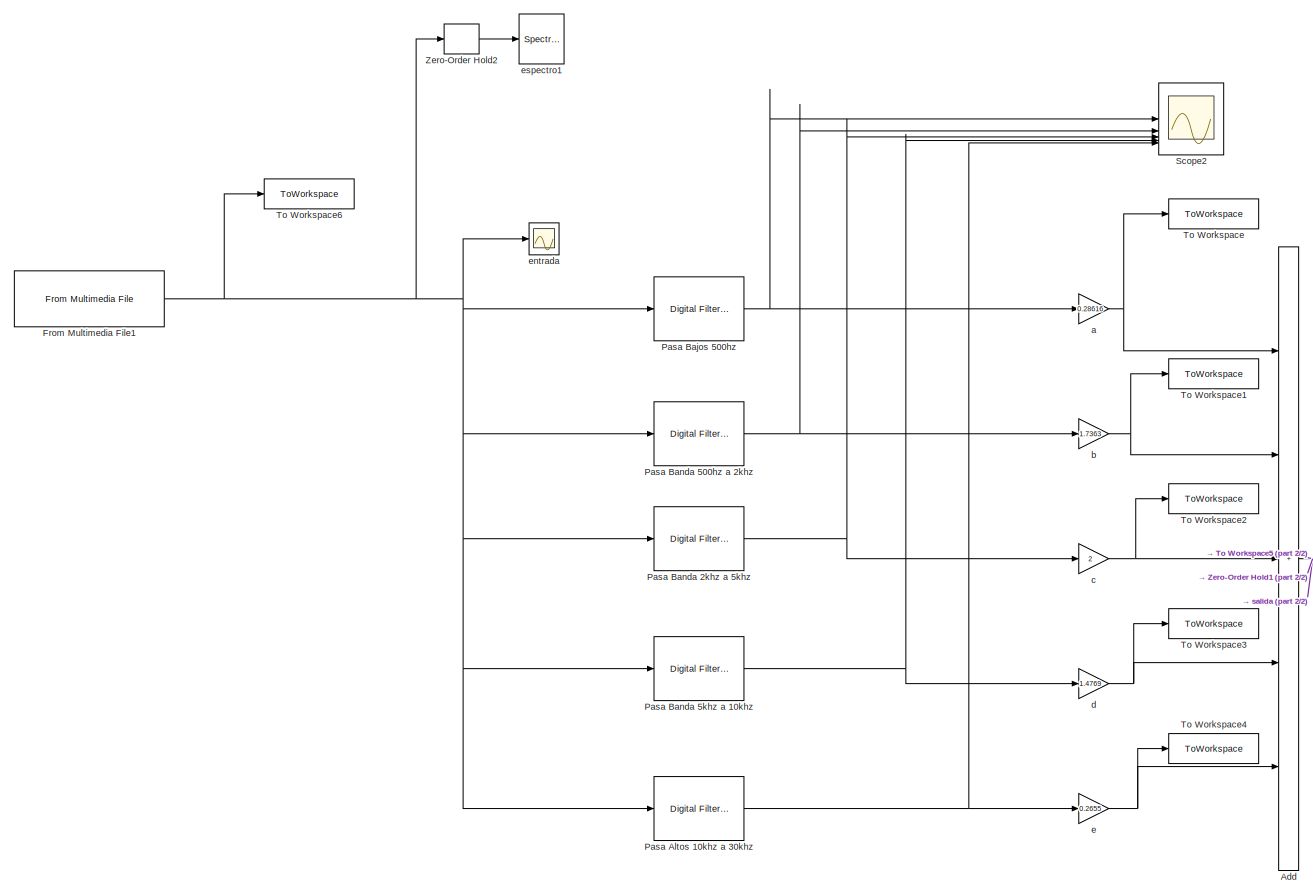
[diagram: root canvas - part 1/2, most of the canvas]
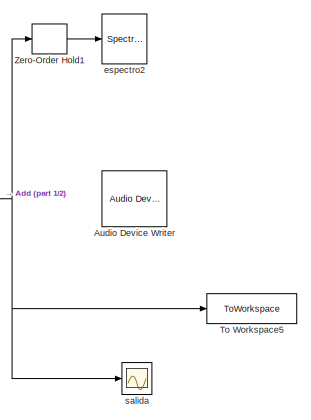
[diagram: root canvas - part 2/2, middle right region]
MODEL slx_5b234a29a87e
KIND model
CONFIG AbsTol = auto
CONFIG EnableMultiTasking = off
CONFIG FixedStep = auto
CONFIG MaxStep = auto
CONFIG MinStep = auto
CONFIG RelTol = 1e-3
CONFIG SampleTimeConstraint = Unconstrained
CONFIG SolverName = VariableStepAuto
CONFIG StartTime = 0.0
CONFIG StopTime = inf
BLOCK [Sum] Add
  IconShape = rectangular
  Inputs = +++++
BLOCK [Reference] Audio Device Writer  REF=dspsnks4/Audio Device
Writer
  LibrarySourceBlock = audiosinks/Audio Device\nWriter
  SourceBlock = dspsnks4/Audio Device\nWriter
  SourceType = Audio Device Writer
BLOCK [Reference] From Multimedia File1  REF=dspvision/From Multimedia File
  LibrarySourceBlock = audiosources/From Multimedia File
  SourceBlock = dspvision/From Multimedia File
  SourceType = From Multimedia File
BLOCK [Reference] Pasa Altos 10khz a 30khz  REF=dspfdesign/Digital
Filter Design
  SourceBlock = dspfdesign/Digital\nFilter Design
  SourceType = Digital Filter Design
  UserDataPersistent = on
BLOCK [Reference] Pasa Bajos 500hz  REF=dspfdesign/Digital
Filter Design
  SourceBlock = dspfdesign/Digital\nFilter Design
  SourceType = Digital Filter Design
  UserDataPersistent = on
BLOCK [Reference] Pasa Banda 2khz a 5khz  REF=dspfdesign/Digital
Filter Design
  SourceBlock = dspfdesign/Digital\nFilter Design
  SourceType = Digital Filter Design
  UserDataPersistent = on
BLOCK [Reference] Pasa Banda 500hz a 2khz  REF=dspfdesign/Digital
Filter Design
  SourceBlock = dspfdesign/Digital\nFilter Design
  SourceType = Digital Filter Design
  UserDataPersistent = on
BLOCK [Reference] Pasa Banda 5khz a 10khz  REF=dspfdesign/Digital
Filter Design
  SourceBlock = dspfdesign/Digital\nFilter Design
  SourceType = Digital Filter Design
  UserDataPersistent = on
BLOCK [Scope] Scope2
  Floating = off
  NumInputPorts = 5
  ScopeSpecificationString = Simulink.scopes.TimeScopeBlockCfg('CurrentConfiguration', extmgr.ConfigurationSet(extmgr.Configuration('Core','General UI',true),extmgr.Configuration('Core','Source UI',true),extmgr.Configuration('Sources','WiredSimulink',true,'DataLoggingVariableName','ScopeData2'),extmgr.Configuration('Visuals','Time Domain',true,'SerializedDisplays',{struct('MinYLimReal','-0.60042','MaxYLimReal','0.60631','YLab...<+4781ch>
BLOCK [ToWorkspace] To Workspace
  FixptAsFi = on
  MaxDataPoints = inf
  SampleTime = -1
  SaveFormat = Timeseries
  VariableName = a1
BLOCK [ToWorkspace] To Workspace1
  FixptAsFi = on
  MaxDataPoints = inf
  SampleTime = -1
  SaveFormat = Timeseries
  VariableName = b1
BLOCK [ToWorkspace] To Workspace2
  FixptAsFi = on
  MaxDataPoints = inf
  SampleTime = -1
  SaveFormat = Timeseries
  VariableName = c1
BLOCK [ToWorkspace] To Workspace3
  FixptAsFi = on
  MaxDataPoints = inf
  SampleTime = -1
  SaveFormat = Timeseries
  VariableName = d1
BLOCK [ToWorkspace] To Workspace4
  FixptAsFi = on
  MaxDataPoints = inf
  SampleTime = -1
  SaveFormat = Timeseries
  VariableName = e1
BLOCK [ToWorkspace] To Workspace5
  FixptAsFi = on
  MaxDataPoints = inf
  SampleTime = -1
  SaveFormat = Timeseries
  VariableName = salida
BLOCK [ToWorkspace] To Workspace6
  FixptAsFi = on
  MaxDataPoints = inf
  SampleTime = -1
  SaveFormat = Timeseries
  VariableName = entrada
BLOCK [ZeroOrderHold] Zero-Order Hold1
  SampleTime = 0.0001
BLOCK [ZeroOrderHold] Zero-Order Hold2
  SampleTime = 0.0001
BLOCK [Gain] a
  Gain = 0.28616
BLOCK [Gain] b
  Gain = 1.7363
BLOCK [Gain] c
  Gain = 2
BLOCK [Gain] d
  Gain = 1.4769
BLOCK [Gain] e
  Gain = 0.2655
BLOCK [Scope] entrada
  Floating = off
  NumInputPorts = 1
  ScopeSpecificationString = Simulink.scopes.TimeScopeBlockCfg('CurrentConfiguration', extmgr.ConfigurationSet(extmgr.Configuration('Core','General UI',true),extmgr.Configuration('Core','Source UI',true),extmgr.Configuration('Sources','WiredSimulink',true),extmgr.Configuration('Visuals','Time Domain',true,'SerializedDisplays',{struct('MinYLimReal','-1.25','MaxYLimReal','1.25','YLabelReal','','MinYLimMag','0.00000','MaxYLimMag...<+1489ch>
BLOCK [SpectrumAnalyzer] espectro1
  FrequencyScale = Log
  FrequencySpan = Start and stop frequencies
  GraphicalSettings = {"GraphicalSettings":{"Style":{"BackgroundColor":[0.12941176470588237,0.12941176470588237,0.12941176470588237],"AxesColor":[0.07058823529411765,0.07058823529411765,0.07058823529411765],"LabelsColor":[0.8509803921568627,0.8509803921568627,0.8509803921568627],"PreserveColors":false,"Visible":[true,true],"LineStyle":["-","-"],"LineWidth":[1.5,1.5],"BarWidth":[0.9,0.9],"LineColor":[[1,0.90980392156862...<+1087ch>
  PlotAsTwoSidedSpectrum = off
  SampleRate = 44.1e3
  ScopeFrameLocation = window
  SelectedToolstripTab = spectrumAnalyzerToolstrip.estimationTab
  StartFrequency = 20
  Visible = on
  WasSavedAsWebScope = on
  WindowInvariantSamplesPerUpdate = on
  WindowPosition = [161.000000,507.000000,1132.000000,626.000000,]
  YLimits = [-55.81620684,3.32072735]
BLOCK [SpectrumAnalyzer] espectro2
  FrequencyScale = Log
  FrequencySpan = Start and stop frequencies
  GraphicalSettings = {"GraphicalSettings":{"Style":{"BackgroundColor":[0.12941176470588237,0.12941176470588237,0.12941176470588237],"AxesColor":[0.07058823529411765,0.07058823529411765,0.07058823529411765],"LabelsColor":[0.8509803921568627,0.8509803921568627,0.8509803921568627],"PreserveColors":false,"Visible":[true,true],"LineStyle":["-","-"],"LineWidth":[1.5,1.5],"BarWidth":[0.9,0.9],"LineColor":[[1,0.90980392156862...<+1087ch>
  PlotAsTwoSidedSpectrum = off
  SampleRate = 44.1e3
  ScopeFrameLocation = window
  StartFrequency = 20
  Visible = on
  WasSavedAsWebScope = on
  WindowInvariantSamplesPerUpdate = on
  WindowPosition = [279.000000,487.000000,1132.000000,626.000000,]
  YLimits = [-50.92958325,-3.59864274]
BLOCK [Scope] salida
  Floating = off
  NumInputPorts = 1
  ScopeSpecificationString = Simulink.scopes.TimeScopeBlockCfg('CurrentConfiguration', extmgr.ConfigurationSet(extmgr.Configuration('Core','General UI',true),extmgr.Configuration('Core','Source UI',true),extmgr.Configuration('Sources','WiredSimulink',true,'DataLoggingVariableName','ScopeData1'),extmgr.Configuration('Visuals','Time Domain',true,'SerializedDisplays',{struct('MinYLimReal','-53.32934','MaxYLimReal','48.98274','YL...<+1516ch>
NET Add:1 -> To Workspace5:1, Zero-Order Hold1:1, salida:1
NET From Multimedia File1:1 -> Pasa Altos 10khz a 30khz:1, Pasa Bajos 500hz:1, Pasa Banda 2khz a 5khz:1, Pasa Banda 500hz a 2khz:1, Pasa Banda 5khz a 10khz:1, To Workspace6:1, Zero-Order Hold2:1, entrada:1
NET Pasa Altos 10khz a 30khz:1 -> Scope2:5, e:1
NET Pasa Bajos 500hz:1 -> Scope2:1, a:1
NET Pasa Banda 2khz a 5khz:1 -> Scope2:3, c:1
NET Pasa Banda 500hz a 2khz:1 -> Scope2:2, b:1
NET Pasa Banda 5khz a 10khz:1 -> Scope2:4, d:1
LINE Zero-Order Hold1:1 -> espectro2:1
LINE Zero-Order Hold2:1 -> espectro1:1
NET a:1 -> Add:1, To Workspace:1
NET b:1 -> Add:2, To Workspace1:1
NET c:1 -> Add:3, To Workspace2:1
NET d:1 -> Add:4, To Workspace3:1
NET e:1 -> Add:5, To Workspace4:1
note: NET lines group one-source signal fan-out (src -> all destinations, sorted); 1:1 wires keep LINE
